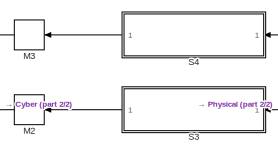
[diagram: root canvas - part 1/2, top center region]
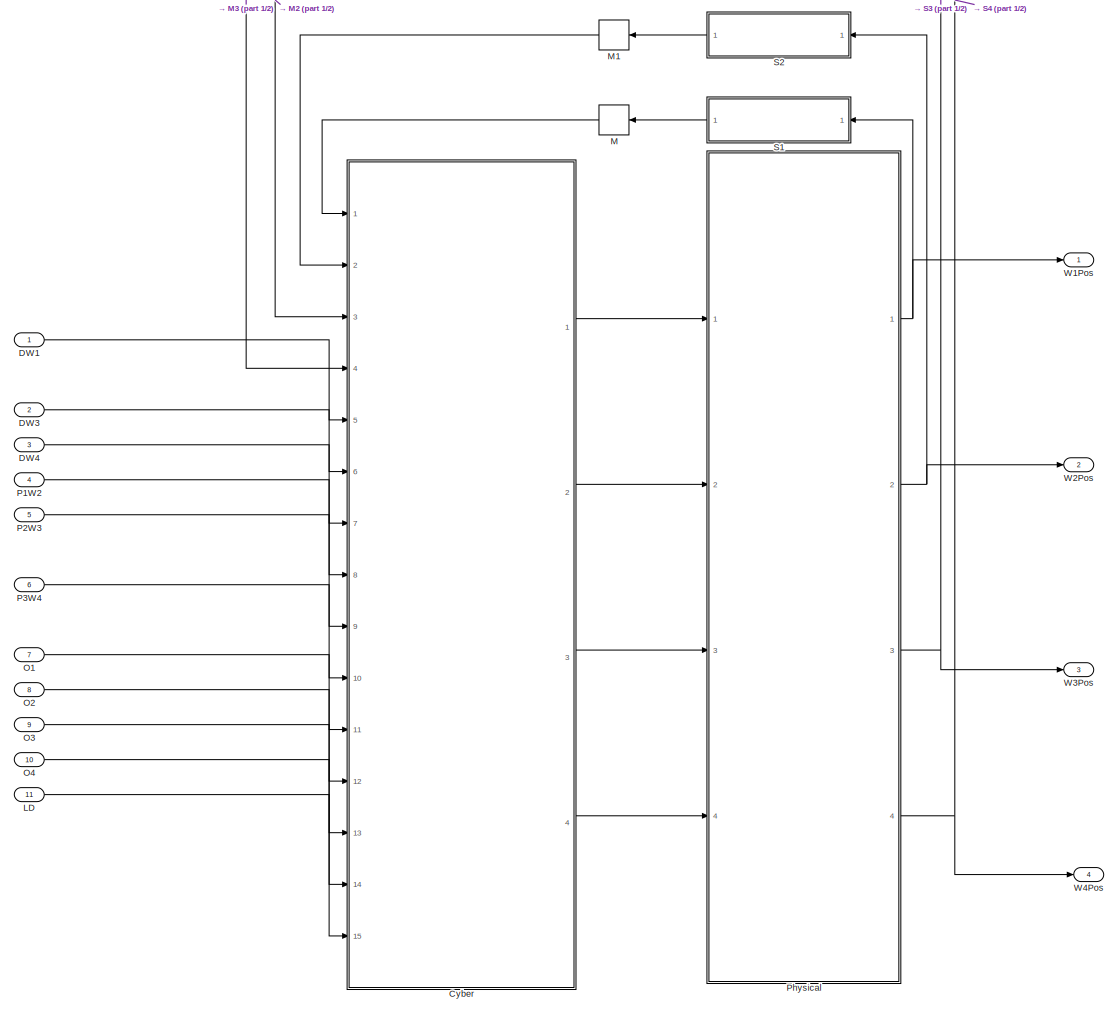
[diagram: root canvas - part 2/2, most of the canvas]
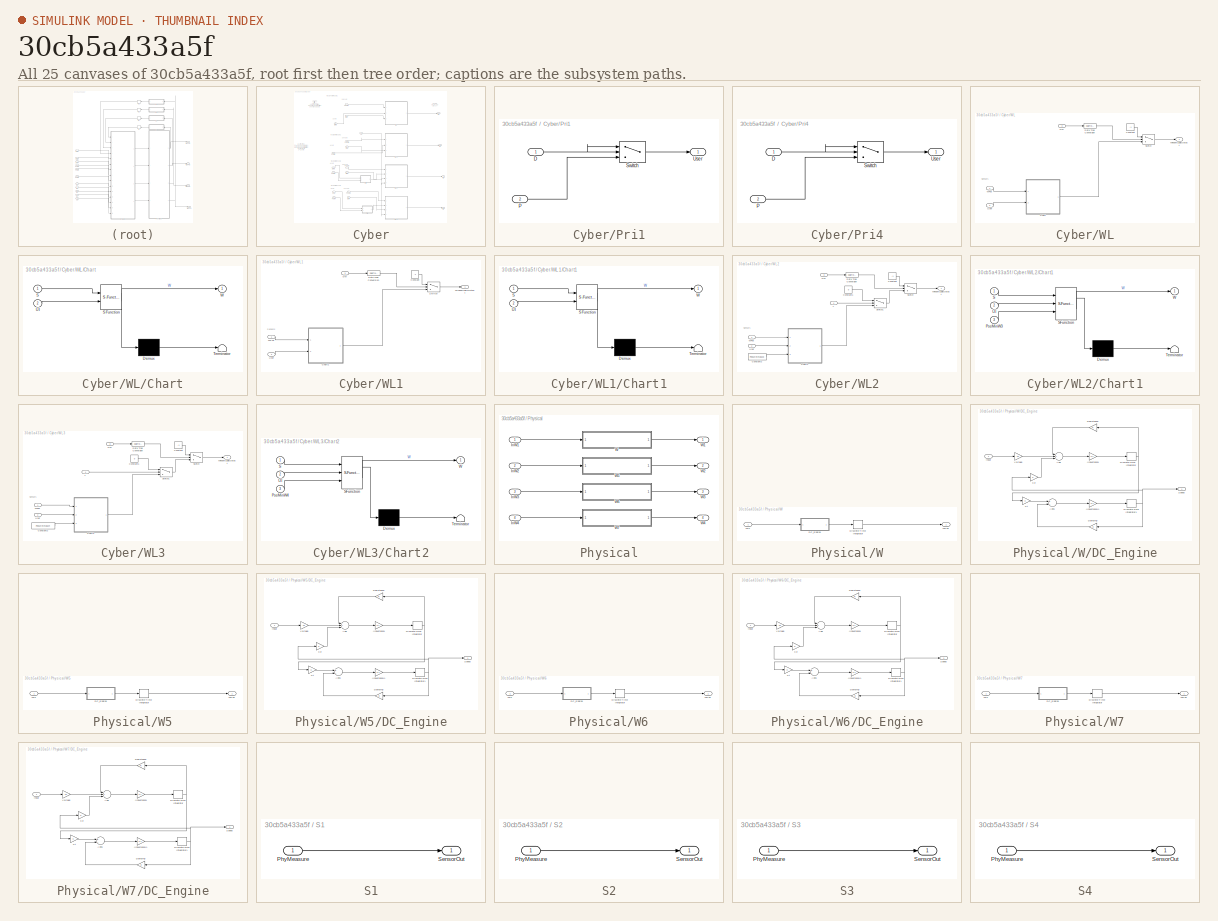
[diagram: thumbnail index - all 25 canvases of the model, root first then tree order]
MODEL slx_30cb5a433a5f
KIND model
CONFIG AbsTol = auto
CONFIG EnableMultiTasking = on
CONFIG FixedStep = auto
CONFIG MaxStep = auto
CONFIG MinStep = auto
CONFIG RelTol = 1e-3
CONFIG SampleTimeConstraint = Unconstrained
CONFIG Solver = ode3
CONFIG SolverName = ode3
CONFIG StartTime = 0.0
CONFIG StopTime = 10.0
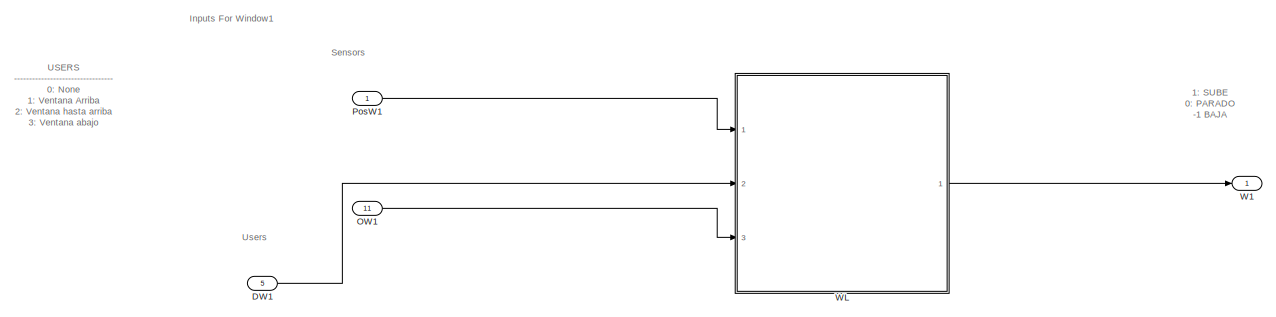
[diagram: Cyber - part 1/3, full width, top band]
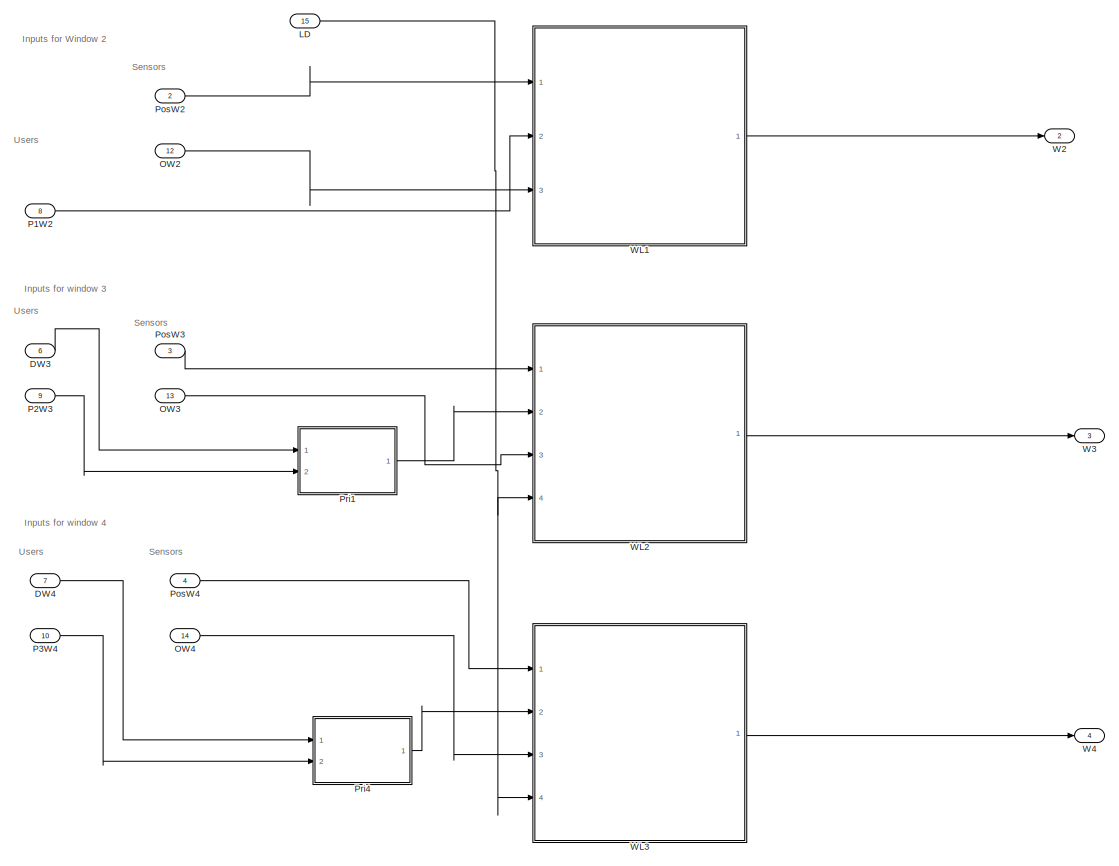
[diagram: Cyber - part 2/3, full width, middle band]
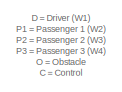
[diagram: Cyber - part 3/3, middle left region]
BLOCK [SubSystem] Cyber
  Ports = [15, 4]
  RequestExecContextInheritance = off
BLOCK [Inport] Cyber/DW1
  IconDisplay = Port number
  Port = 5
BLOCK [Inport] Cyber/DW3
  IconDisplay = Port number
  Port = 6
BLOCK [Inport] Cyber/DW4
  IconDisplay = Port number
  Port = 7
BLOCK [Inport] Cyber/LD
  IconDisplay = Port number
  Port = 15
BLOCK [Inport] Cyber/OW1
  IconDisplay = Port number
  Port = 11
BLOCK [Inport] Cyber/OW2
  IconDisplay = Port number
  Port = 12
BLOCK [Inport] Cyber/OW3
  IconDisplay = Port number
  Port = 13
BLOCK [Inport] Cyber/OW4
  IconDisplay = Port number
  Port = 14
BLOCK [Inport] Cyber/P1W2
  IconDisplay = Port number
  Port = 8
BLOCK [Inport] Cyber/P2W3
  IconDisplay = Port number
  Port = 9
BLOCK [Inport] Cyber/P3W4
  IconDisplay = Port number
  Port = 10
BLOCK [Inport] Cyber/PosW1
  IconDisplay = Port number
BLOCK [Inport] Cyber/PosW2
  IconDisplay = Port number
  Port = 2
BLOCK [Inport] Cyber/PosW3
  IconDisplay = Port number
  Port = 3
BLOCK [Inport] Cyber/PosW4
  IconDisplay = Port number
  Port = 4
BLOCK [SubSystem] Cyber/Pri1
  Ports = [2, 1]
  RequestExecContextInheritance = off
BLOCK [Inport] Cyber/Pri1/D
  IconDisplay = Port number
BLOCK [Inport] Cyber/Pri1/P
  IconDisplay = Port number
  Port = 2
BLOCK [Switch] Cyber/Pri1/Switch
  Criteria = u2 ~= 0
  InputSameDT = off
  SaturateOnIntegerOverflow = off
BLOCK [Outport] Cyber/Pri1/User
  IconDisplay = Port number
BLOCK [SubSystem] Cyber/Pri4
  Ports = [2, 1]
  RequestExecContextInheritance = off
BLOCK [Inport] Cyber/Pri4/D
  IconDisplay = Port number
BLOCK [Inport] Cyber/Pri4/P
  IconDisplay = Port number
  Port = 2
BLOCK [Switch] Cyber/Pri4/Switch
  Criteria = u2 ~= 0
  InputSameDT = off
  SaturateOnIntegerOverflow = off
BLOCK [Outport] Cyber/Pri4/User
  IconDisplay = Port number
BLOCK [Outport] Cyber/W1
  IconDisplay = Port number
BLOCK [Outport] Cyber/W2
  IconDisplay = Port number
  Port = 2
BLOCK [Outport] Cyber/W3
  IconDisplay = Port number
  Port = 3
BLOCK [Outport] Cyber/W4
  IconDisplay = Port number
  Port = 4
BLOCK [SubSystem] Cyber/WL
  Ports = [3, 1]
  RequestExecContextInheritance = off
BLOCK [SubSystem] Cyber/WL/Chart
  ErrorFcn = Stateflow.Translate.translate
  PermitHierarchicalResolution = ExplicitOnly
  Ports = [2, 1]
  RequestExecContextInheritance = off
  SFBlockType = Chart
  TreatAsAtomicUnit = on
BLOCK [Demux] Cyber/WL/Chart/ Demux 
  Outputs = 1
  Ports = [1, 1]
BLOCK [S-Function] Cyber/WL/Chart/ SFunction 
  EnableBusSupport = off
  FunctionName = sf_sfun
  PortCounts = [2 2]
  Ports = [2, 2]
  SFcnIsStateOwnerBlock = off
  SFunctionDeploymentMode = off
  Tag = Stateflow S-Function c00012 1
BLOCK [Terminator] Cyber/WL/Chart/ Terminator 
BLOCK [Inport] Cyber/WL/Chart/S
  IconDisplay = Port number
BLOCK [Inport] Cyber/WL/Chart/UI
  IconDisplay = Port number
  Port = 2
BLOCK [Outport] Cyber/WL/Chart/W
  IconDisplay = Port number
BLOCK [Constant] Cyber/WL/Constant
  Value = -1
BLOCK [DataTypeConversion] Cyber/WL/Data Type Conversion
  RndMeth = Floor
  SaturateOnIntegerOverflow = off
BLOCK [Inport] Cyber/WL/OW
  IconDisplay = Port number
  Port = 3
BLOCK [Switch] Cyber/WL/Switch
  Criteria = u2 ~= 0
  InputSameDT = off
  SaturateOnIntegerOverflow = off
  Threshold = 1
  ZeroCross = off
BLOCK [Inport] Cyber/WL/User
  IconDisplay = Port number
  Port = 2
BLOCK [Inport] Cyber/WL/WPos
  IconDisplay = Port number
BLOCK [Outport] Cyber/WL/WindowLogicOutput
  IconDisplay = Port number
BLOCK [SubSystem] Cyber/WL1
  Ports = [3, 1]
  RequestExecContextInheritance = off
BLOCK [SubSystem] Cyber/WL1/Chart1
  ErrorFcn = Stateflow.Translate.translate
  PermitHierarchicalResolution = ExplicitOnly
  Ports = [2, 1]
  RequestExecContextInheritance = off
  SFBlockType = Chart
  TreatAsAtomicUnit = on
BLOCK [Demux] Cyber/WL1/Chart1/ Demux 
  Outputs = 1
  Ports = [1, 1]
BLOCK [S-Function] Cyber/WL1/Chart1/ SFunction 
  EnableBusSupport = off
  FunctionName = sf_sfun
  PortCounts = [2 2]
  Ports = [2, 2]
  SFcnIsStateOwnerBlock = off
  SFunctionDeploymentMode = off
  Tag = Stateflow S-Function c00012 3
BLOCK [Terminator] Cyber/WL1/Chart1/ Terminator 
BLOCK [Inport] Cyber/WL1/Chart1/S
  IconDisplay = Port number
BLOCK [Inport] Cyber/WL1/Chart1/UI
  IconDisplay = Port number
  Port = 2
BLOCK [Outport] Cyber/WL1/Chart1/W
  IconDisplay = Port number
BLOCK [Constant] Cyber/WL1/Constant
  Value = -1
BLOCK [DataTypeConversion] Cyber/WL1/Data Type Conversion
  RndMeth = Floor
  SaturateOnIntegerOverflow = off
BLOCK [Inport] Cyber/WL1/OW
  IconDisplay = Port number
  Port = 3
BLOCK [Switch] Cyber/WL1/Switch
  Criteria = u2 ~= 0
  InputSameDT = off
  SaturateOnIntegerOverflow = off
  Threshold = 1
  ZeroCross = off
BLOCK [Inport] Cyber/WL1/User
  IconDisplay = Port number
  Port = 2
BLOCK [Inport] Cyber/WL1/WPos
  IconDisplay = Port number
BLOCK [Outport] Cyber/WL1/WindowLogicOutput
  IconDisplay = Port number
BLOCK [SubSystem] Cyber/WL2
  Ports = [4, 1]
  RequestExecContextInheritance = off
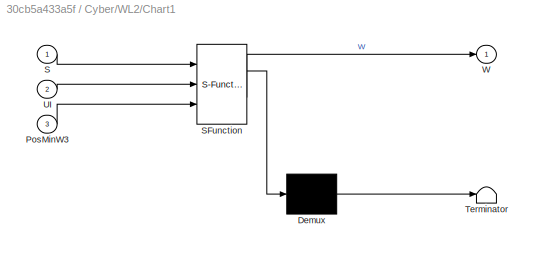
BLOCK [SubSystem] Cyber/WL2/Chart1
  ErrorFcn = Stateflow.Translate.translate
  PermitHierarchicalResolution = ExplicitOnly
  Ports = [3, 1]
  RequestExecContextInheritance = off
  SFBlockType = Chart
  TreatAsAtomicUnit = on
BLOCK [Demux] Cyber/WL2/Chart1/ Demux 
  Outputs = 1
  Ports = [1, 1]
BLOCK [S-Function] Cyber/WL2/Chart1/ SFunction 
  EnableBusSupport = off
  FunctionName = sf_sfun
  PortCounts = [3 2]
  Ports = [3, 2]
  SFcnIsStateOwnerBlock = off
  SFunctionDeploymentMode = off
  Tag = Stateflow S-Function c00012 2
BLOCK [Terminator] Cyber/WL2/Chart1/ Terminator 
BLOCK [Inport] Cyber/WL2/Chart1/PosMinW3
  IconDisplay = Port number
  Port = 3
BLOCK [Inport] Cyber/WL2/Chart1/S
  IconDisplay = Port number
BLOCK [Inport] Cyber/WL2/Chart1/UI
  IconDisplay = Port number
  Port = 2
BLOCK [Outport] Cyber/WL2/Chart1/W
  IconDisplay = Port number
BLOCK [Constant] Cyber/WL2/Constant
  Value = -1
BLOCK [Constant] Cyber/WL2/Constant1
  Value = 0
BLOCK [Constant] Cyber/WL2/Constant2
  Value = PosMinimaW3
BLOCK [DataTypeConversion] Cyber/WL2/Data Type Conversion
  RndMeth = Floor
  SaturateOnIntegerOverflow = off
BLOCK [Inport] Cyber/WL2/L
  IconDisplay = Port number
  Port = 4
BLOCK [Inport] Cyber/WL2/OW
  IconDisplay = Port number
  Port = 3
BLOCK [Switch] Cyber/WL2/Switch
  Criteria = u2 ~= 0
  InputSameDT = off
  SaturateOnIntegerOverflow = off
  Threshold = 1
  ZeroCross = off
BLOCK [Switch] Cyber/WL2/Switch1
  Criteria = u2 ~= 0
  InputSameDT = off
  SaturateOnIntegerOverflow = off
BLOCK [Inport] Cyber/WL2/User
  IconDisplay = Port number
  Port = 2
BLOCK [Inport] Cyber/WL2/WPos
  IconDisplay = Port number
BLOCK [Outport] Cyber/WL2/WindowLogicOutput
  IconDisplay = Port number
BLOCK [SubSystem] Cyber/WL3
  Ports = [4, 1]
  RequestExecContextInheritance = off
BLOCK [SubSystem] Cyber/WL3/Chart2
  ErrorFcn = Stateflow.Translate.translate
  PermitHierarchicalResolution = ExplicitOnly
  Ports = [3, 1]
  RequestExecContextInheritance = off
  SFBlockType = Chart
  TreatAsAtomicUnit = on
BLOCK [Demux] Cyber/WL3/Chart2/ Demux 
  Outputs = 1
  Ports = [1, 1]
BLOCK [S-Function] Cyber/WL3/Chart2/ SFunction 
  EnableBusSupport = off
  FunctionName = sf_sfun
  PortCounts = [3 2]
  Ports = [3, 2]
  SFcnIsStateOwnerBlock = off
  SFunctionDeploymentMode = off
  Tag = Stateflow S-Function c00012 4
BLOCK [Terminator] Cyber/WL3/Chart2/ Terminator 
BLOCK [Inport] Cyber/WL3/Chart2/PosMinW4
  IconDisplay = Port number
  Port = 3
BLOCK [Inport] Cyber/WL3/Chart2/S
  IconDisplay = Port number
BLOCK [Inport] Cyber/WL3/Chart2/UI
  IconDisplay = Port number
  Port = 2
BLOCK [Outport] Cyber/WL3/Chart2/W
  IconDisplay = Port number
BLOCK [Constant] Cyber/WL3/Constant
  Value = -1
BLOCK [Constant] Cyber/WL3/Constant1
  Value = 0
BLOCK [Constant] Cyber/WL3/Constant2
  Value = PosMinimaW4
BLOCK [DataTypeConversion] Cyber/WL3/Data Type Conversion
  RndMeth = Floor
  SaturateOnIntegerOverflow = off
BLOCK [Inport] Cyber/WL3/L
  IconDisplay = Port number
  Port = 4
BLOCK [Inport] Cyber/WL3/OW
  IconDisplay = Port number
  Port = 3
BLOCK [Switch] Cyber/WL3/Switch
  Criteria = u2 ~= 0
  InputSameDT = off
  SaturateOnIntegerOverflow = off
  Threshold = 1
  ZeroCross = off
BLOCK [Switch] Cyber/WL3/Switch1
  Criteria = u2 ~= 0
  InputSameDT = off
  SaturateOnIntegerOverflow = off
BLOCK [Inport] Cyber/WL3/User
  IconDisplay = Port number
  Port = 2
BLOCK [Inport] Cyber/WL3/WPos
  IconDisplay = Port number
BLOCK [Outport] Cyber/WL3/WindowLogicOutput
  IconDisplay = Port number
BLOCK [Inport] DW1
  IconDisplay = Port number
  OutDataTypeStr = int8
  OutMax = 4
  OutMin = 0
BLOCK [Inport] DW3
  IconDisplay = Port number
  OutDataTypeStr = int8
  OutMax = 4
  OutMin = 0
  Port = 2
BLOCK [Inport] DW4
  IconDisplay = Port number
  OutDataTypeStr = int8
  OutMax = 4
  OutMin = 0
  Port = 3
BLOCK [Inport] LD
  IconDisplay = Port number
  OutDataTypeStr = boolean
  Port = 11
BLOCK [Memory] M
BLOCK [Memory] M1
BLOCK [Memory] M2
BLOCK [Memory] M3
BLOCK [Inport] O1
  IconDisplay = Port number
  OutDataTypeStr = boolean
  Port = 7
BLOCK [Inport] O2
  IconDisplay = Port number
  OutDataTypeStr = boolean
  Port = 8
BLOCK [Inport] O3
  IconDisplay = Port number
  OutDataTypeStr = boolean
  Port = 9
BLOCK [Inport] O4
  IconDisplay = Port number
  OutDataTypeStr = boolean
  Port = 10
BLOCK [Inport] P1W2
  IconDisplay = Port number
  OutDataTypeStr = int8
  OutMax = 4
  OutMin = 0
  Port = 4
BLOCK [Inport] P2W3
  IconDisplay = Port number
  OutDataTypeStr = int8
  OutMax = 4
  OutMin = 0
  Port = 5
BLOCK [Inport] P3W4
  IconDisplay = Port number
  OutDataTypeStr = int8
  OutMax = 4
  OutMin = 0
  Port = 6
BLOCK [SubSystem] Physical
  Ports = [4, 4]
  RequestExecContextInheritance = off
BLOCK [Inport] Physical/InW1
  IconDisplay = Port number
BLOCK [Inport] Physical/InW2
  IconDisplay = Port number
  Port = 2
BLOCK [Inport] Physical/InW3
  IconDisplay = Port number
  Port = 3
BLOCK [Inport] Physical/InW4
  IconDisplay = Port number
  Port = 4
BLOCK [SubSystem] Physical/W
  Ports = [1, 1]
  RequestExecContextInheritance = off
BLOCK [SubSystem] Physical/W/DC_Engine
  Ports = [1, 1]
  RequestExecContextInheritance = off
BLOCK [Gain] Physical/W/DC_Engine/(Inductance)
  Gain = 1/L
  OutDataTypeStr = Inherit: Inherit via internal rule
  ParamDataTypeStr = Inherit: Inherit via internal rule
  SaturateOnIntegerOverflow = off
BLOCK [Gain] Physical/W/DC_Engine/(Inductance)1
  Gain = 1/J
  OutDataTypeStr = Inherit: Inherit via internal rule
  ParamDataTypeStr = Inherit: Inherit via internal rule
  SaturateOnIntegerOverflow = off
BLOCK [Sum] Physical/W/DC_Engine/Add
  InputSameDT = off
  Inputs = -+-
  OutDataTypeStr = Inherit: Inherit via internal rule
  Ports = [3, 1]
  SaturateOnIntegerOverflow = off
BLOCK [Sum] Physical/W/DC_Engine/Add1
  InputSameDT = off
  Inputs = +-
  OutDataTypeStr = Inherit: Inherit via internal rule
  Ports = [2, 1]
  SaturateOnIntegerOverflow = off
BLOCK [Gain] Physical/W/DC_Engine/Damping
  Gain = b
  OutDataTypeStr = Inherit: Inherit via internal rule
  ParamDataTypeStr = Inherit: Inherit via internal rule
  SaturateOnIntegerOverflow = off
BLOCK [DiscreteIntegrator] Physical/W/DC_Engine/Discrete-Time Integrator
  ICPrevOutput = DiscIntNeverNeededParam
  ICPrevScaledInput = DiscIntNeverNeededParam
  Ports = [1, 1]
  SampleTime = -1
BLOCK [DiscreteIntegrator] Physical/W/DC_Engine/Discrete-Time Integrator1
  ICPrevOutput = DiscIntNeverNeededParam
  ICPrevScaledInput = DiscIntNeverNeededParam
  Ports = [1, 1]
  SampleTime = -1
BLOCK [Gain] Physical/W/DC_Engine/Ke
  Gain = K
  OutDataTypeStr = Inherit: Inherit via internal rule
  ParamDataTypeStr = Inherit: Inherit via internal rule
  SaturateOnIntegerOverflow = off
BLOCK [Gain] Physical/W/DC_Engine/Kt
  Gain = K
  OutDataTypeStr = Inherit: Inherit via internal rule
  ParamDataTypeStr = Inherit: Inherit via internal rule
  SaturateOnIntegerOverflow = off
BLOCK [Gain] Physical/W/DC_Engine/Resistance
  Gain = R
  OutDataTypeStr = Inherit: Inherit via internal rule
  ParamDataTypeStr = Inherit: Inherit via internal rule
  SaturateOnIntegerOverflow = off
BLOCK [Outport] Physical/W/DC_Engine/Speed
  IconDisplay = Port number
BLOCK [Gain] Physical/W/DC_Engine/Voltage
  Gain = 10
  OutDataTypeStr = Inherit: Inherit via internal rule
  ParamDataTypeStr = Inherit: Inherit via internal rule
  SaturateOnIntegerOverflow = off
BLOCK [Inport] Physical/W/DC_Engine/input
  IconDisplay = Port number
BLOCK [DiscreteIntegrator] Physical/W/Discrete-Time Integrator
  ICPrevOutput = DiscIntNeverNeededParam
  ICPrevScaledInput = DiscIntNeverNeededParam
  InitialCondition = 5
  LimitOutput = on
  LowerSaturationLimit = 0
  Ports = [1, 1]
  SampleTime = -1
  UpperSaturationLimit = 5
BLOCK [Inport] Physical/W/WIn
  IconDisplay = Port number
BLOCK [Outport] Physical/W/WPos
  IconDisplay = Port number
BLOCK [Outport] Physical/W1
  IconDisplay = Port number
BLOCK [Outport] Physical/W2
  IconDisplay = Port number
  Port = 2
BLOCK [Outport] Physical/W3
  IconDisplay = Port number
  Port = 3
BLOCK [Outport] Physical/W4
  IconDisplay = Port number
  Port = 4
BLOCK [SubSystem] Physical/W5
  Ports = [1, 1]
  RequestExecContextInheritance = off
BLOCK [SubSystem] Physical/W5/DC_Engine
  Ports = [1, 1]
  RequestExecContextInheritance = off
BLOCK [Gain] Physical/W5/DC_Engine/(Inductance)
  Gain = 1/L
  OutDataTypeStr = Inherit: Inherit via internal rule
  ParamDataTypeStr = Inherit: Inherit via internal rule
  SaturateOnIntegerOverflow = off
BLOCK [Gain] Physical/W5/DC_Engine/(Inductance)1
  Gain = 1/J
  OutDataTypeStr = Inherit: Inherit via internal rule
  ParamDataTypeStr = Inherit: Inherit via internal rule
  SaturateOnIntegerOverflow = off
BLOCK [Sum] Physical/W5/DC_Engine/Add
  InputSameDT = off
  Inputs = -+-
  OutDataTypeStr = Inherit: Inherit via internal rule
  Ports = [3, 1]
  SaturateOnIntegerOverflow = off
BLOCK [Sum] Physical/W5/DC_Engine/Add1
  InputSameDT = off
  Inputs = +-
  OutDataTypeStr = Inherit: Inherit via internal rule
  Ports = [2, 1]
  SaturateOnIntegerOverflow = off
BLOCK [Gain] Physical/W5/DC_Engine/Damping
  Gain = b
  OutDataTypeStr = Inherit: Inherit via internal rule
  ParamDataTypeStr = Inherit: Inherit via internal rule
  SaturateOnIntegerOverflow = off
BLOCK [DiscreteIntegrator] Physical/W5/DC_Engine/Discrete-Time Integrator
  ICPrevOutput = DiscIntNeverNeededParam
  ICPrevScaledInput = DiscIntNeverNeededParam
  Ports = [1, 1]
  SampleTime = -1
BLOCK [DiscreteIntegrator] Physical/W5/DC_Engine/Discrete-Time Integrator1
  ICPrevOutput = DiscIntNeverNeededParam
  ICPrevScaledInput = DiscIntNeverNeededParam
  Ports = [1, 1]
  SampleTime = -1
BLOCK [Gain] Physical/W5/DC_Engine/Ke
  Gain = K
  OutDataTypeStr = Inherit: Inherit via internal rule
  ParamDataTypeStr = Inherit: Inherit via internal rule
  SaturateOnIntegerOverflow = off
BLOCK [Gain] Physical/W5/DC_Engine/Kt
  Gain = K
  OutDataTypeStr = Inherit: Inherit via internal rule
  ParamDataTypeStr = Inherit: Inherit via internal rule
  SaturateOnIntegerOverflow = off
BLOCK [Gain] Physical/W5/DC_Engine/Resistance
  Gain = R
  OutDataTypeStr = Inherit: Inherit via internal rule
  ParamDataTypeStr = Inherit: Inherit via internal rule
  SaturateOnIntegerOverflow = off
BLOCK [Outport] Physical/W5/DC_Engine/Speed
  IconDisplay = Port number
BLOCK [Gain] Physical/W5/DC_Engine/Voltage
  Gain = 10
  OutDataTypeStr = Inherit: Inherit via internal rule
  ParamDataTypeStr = Inherit: Inherit via internal rule
  SaturateOnIntegerOverflow = off
BLOCK [Inport] Physical/W5/DC_Engine/input
  IconDisplay = Port number
BLOCK [DiscreteIntegrator] Physical/W5/Discrete-Time Integrator
  ICPrevOutput = DiscIntNeverNeededParam
  ICPrevScaledInput = DiscIntNeverNeededParam
  InitialCondition = 5
  LimitOutput = on
  LowerSaturationLimit = 0
  Ports = [1, 1]
  SampleTime = -1
  UpperSaturationLimit = 5
BLOCK [Inport] Physical/W5/WIn
  IconDisplay = Port number
BLOCK [Outport] Physical/W5/WPos
  IconDisplay = Port number
BLOCK [SubSystem] Physical/W6
  Ports = [1, 1]
  RequestExecContextInheritance = off
BLOCK [SubSystem] Physical/W6/DC_Engine
  Ports = [1, 1]
  RequestExecContextInheritance = off
BLOCK [Gain] Physical/W6/DC_Engine/(Inductance)
  Gain = 1/L
  OutDataTypeStr = Inherit: Inherit via internal rule
  ParamDataTypeStr = Inherit: Inherit via internal rule
  SaturateOnIntegerOverflow = off
BLOCK [Gain] Physical/W6/DC_Engine/(Inductance)1
  Gain = 1/J
  OutDataTypeStr = Inherit: Inherit via internal rule
  ParamDataTypeStr = Inherit: Inherit via internal rule
  SaturateOnIntegerOverflow = off
BLOCK [Sum] Physical/W6/DC_Engine/Add
  InputSameDT = off
  Inputs = -+-
  OutDataTypeStr = Inherit: Inherit via internal rule
  Ports = [3, 1]
  SaturateOnIntegerOverflow = off
BLOCK [Sum] Physical/W6/DC_Engine/Add1
  InputSameDT = off
  Inputs = +-
  OutDataTypeStr = Inherit: Inherit via internal rule
  Ports = [2, 1]
  SaturateOnIntegerOverflow = off
BLOCK [Gain] Physical/W6/DC_Engine/Damping
  Gain = b
  OutDataTypeStr = Inherit: Inherit via internal rule
  ParamDataTypeStr = Inherit: Inherit via internal rule
  SaturateOnIntegerOverflow = off
BLOCK [DiscreteIntegrator] Physical/W6/DC_Engine/Discrete-Time Integrator
  ICPrevOutput = DiscIntNeverNeededParam
  ICPrevScaledInput = DiscIntNeverNeededParam
  Ports = [1, 1]
  SampleTime = -1
BLOCK [DiscreteIntegrator] Physical/W6/DC_Engine/Discrete-Time Integrator1
  ICPrevOutput = DiscIntNeverNeededParam
  ICPrevScaledInput = DiscIntNeverNeededParam
  Ports = [1, 1]
  SampleTime = -1
BLOCK [Gain] Physical/W6/DC_Engine/Ke
  Gain = K
  OutDataTypeStr = Inherit: Inherit via internal rule
  ParamDataTypeStr = Inherit: Inherit via internal rule
  SaturateOnIntegerOverflow = off
BLOCK [Gain] Physical/W6/DC_Engine/Kt
  Gain = K
  OutDataTypeStr = Inherit: Inherit via internal rule
  ParamDataTypeStr = Inherit: Inherit via internal rule
  SaturateOnIntegerOverflow = off
BLOCK [Gain] Physical/W6/DC_Engine/Resistance
  Gain = R
  OutDataTypeStr = Inherit: Inherit via internal rule
  ParamDataTypeStr = Inherit: Inherit via internal rule
  SaturateOnIntegerOverflow = off
BLOCK [Outport] Physical/W6/DC_Engine/Speed
  IconDisplay = Port number
BLOCK [Gain] Physical/W6/DC_Engine/Voltage
  Gain = 10
  OutDataTypeStr = Inherit: Inherit via internal rule
  ParamDataTypeStr = Inherit: Inherit via internal rule
  SaturateOnIntegerOverflow = off
BLOCK [Inport] Physical/W6/DC_Engine/input
  IconDisplay = Port number
BLOCK [DiscreteIntegrator] Physical/W6/Discrete-Time Integrator
  ICPrevOutput = DiscIntNeverNeededParam
  ICPrevScaledInput = DiscIntNeverNeededParam
  InitialCondition = 5
  LimitOutput = on
  LowerSaturationLimit = PosMinimaW3
  Ports = [1, 1]
  SampleTime = -1
  UpperSaturationLimit = 5
BLOCK [Inport] Physical/W6/WIn
  IconDisplay = Port number
BLOCK [Outport] Physical/W6/WPos
  IconDisplay = Port number
BLOCK [SubSystem] Physical/W7
  Ports = [1, 1]
  RequestExecContextInheritance = off
BLOCK [SubSystem] Physical/W7/DC_Engine
  Ports = [1, 1]
  RequestExecContextInheritance = off
BLOCK [Gain] Physical/W7/DC_Engine/(Inductance)
  Gain = 1/L
  OutDataTypeStr = Inherit: Inherit via internal rule
  ParamDataTypeStr = Inherit: Inherit via internal rule
  SaturateOnIntegerOverflow = off
BLOCK [Gain] Physical/W7/DC_Engine/(Inductance)1
  Gain = 1/J
  OutDataTypeStr = Inherit: Inherit via internal rule
  ParamDataTypeStr = Inherit: Inherit via internal rule
  SaturateOnIntegerOverflow = off
BLOCK [Sum] Physical/W7/DC_Engine/Add
  InputSameDT = off
  Inputs = -+-
  OutDataTypeStr = Inherit: Inherit via internal rule
  Ports = [3, 1]
  SaturateOnIntegerOverflow = off
BLOCK [Sum] Physical/W7/DC_Engine/Add1
  InputSameDT = off
  Inputs = +-
  OutDataTypeStr = Inherit: Inherit via internal rule
  Ports = [2, 1]
  SaturateOnIntegerOverflow = off
BLOCK [Gain] Physical/W7/DC_Engine/Damping
  Gain = b
  OutDataTypeStr = Inherit: Inherit via internal rule
  ParamDataTypeStr = Inherit: Inherit via internal rule
  SaturateOnIntegerOverflow = off
BLOCK [DiscreteIntegrator] Physical/W7/DC_Engine/Discrete-Time Integrator
  ICPrevOutput = DiscIntNeverNeededParam
  ICPrevScaledInput = DiscIntNeverNeededParam
  Ports = [1, 1]
  SampleTime = -1
BLOCK [DiscreteIntegrator] Physical/W7/DC_Engine/Discrete-Time Integrator1
  ICPrevOutput = DiscIntNeverNeededParam
  ICPrevScaledInput = DiscIntNeverNeededParam
  Ports = [1, 1]
  SampleTime = -1
BLOCK [Gain] Physical/W7/DC_Engine/Ke
  Gain = K
  OutDataTypeStr = Inherit: Inherit via internal rule
  ParamDataTypeStr = Inherit: Inherit via internal rule
  SaturateOnIntegerOverflow = off
BLOCK [Gain] Physical/W7/DC_Engine/Kt
  Gain = K
  OutDataTypeStr = Inherit: Inherit via internal rule
  ParamDataTypeStr = Inherit: Inherit via internal rule
  SaturateOnIntegerOverflow = off
BLOCK [Gain] Physical/W7/DC_Engine/Resistance
  Gain = R
  OutDataTypeStr = Inherit: Inherit via internal rule
  ParamDataTypeStr = Inherit: Inherit via internal rule
  SaturateOnIntegerOverflow = off
BLOCK [Outport] Physical/W7/DC_Engine/Speed
  IconDisplay = Port number
BLOCK [Gain] Physical/W7/DC_Engine/Voltage
  Gain = 10
  OutDataTypeStr = Inherit: Inherit via internal rule
  ParamDataTypeStr = Inherit: Inherit via internal rule
  SaturateOnIntegerOverflow = off
BLOCK [Inport] Physical/W7/DC_Engine/input
  IconDisplay = Port number
BLOCK [DiscreteIntegrator] Physical/W7/Discrete-Time Integrator
  ICPrevOutput = DiscIntNeverNeededParam
  ICPrevScaledInput = DiscIntNeverNeededParam
  InitialCondition = 5
  LimitOutput = on
  LowerSaturationLimit = PosMinimaW4
  Ports = [1, 1]
  SampleTime = -1
  UpperSaturationLimit = 5
BLOCK [Inport] Physical/W7/WIn
  IconDisplay = Port number
BLOCK [Outport] Physical/W7/WPos
  IconDisplay = Port number
BLOCK [SubSystem] S1
  Ports = [1, 1]
  RequestExecContextInheritance = off
BLOCK [Inport] S1/PhyMeasure
  IconDisplay = Port number
BLOCK [Outport] S1/SensorOut
  IconDisplay = Port number
BLOCK [SubSystem] S2
  Ports = [1, 1]
  RequestExecContextInheritance = off
BLOCK [Inport] S2/PhyMeasure
  IconDisplay = Port number
BLOCK [Outport] S2/SensorOut
  IconDisplay = Port number
BLOCK [SubSystem] S3
  Ports = [1, 1]
  RequestExecContextInheritance = off
BLOCK [Inport] S3/PhyMeasure
  IconDisplay = Port number
BLOCK [Outport] S3/SensorOut
  IconDisplay = Port number
BLOCK [SubSystem] S4
  Ports = [1, 1]
  RequestExecContextInheritance = off
BLOCK [Inport] S4/PhyMeasure
  IconDisplay = Port number
BLOCK [Outport] S4/SensorOut
  IconDisplay = Port number
BLOCK [Outport] W1Pos
  IconDisplay = Port number
BLOCK [Outport] W2Pos
  IconDisplay = Port number
  Port = 2
BLOCK [Outport] W3Pos
  IconDisplay = Port number
  Port = 3
BLOCK [Outport] W4Pos
  IconDisplay = Port number
  Port = 4
ANNOTATION Cyber: 1: SUBE 0: PARADO -1 BAJA
ANNOTATION Cyber: Inputs For Window1
ANNOTATION Cyber: Inputs for Window 2
ANNOTATION Cyber: Inputs for window 3
ANNOTATION Cyber: Inputs for window 4
ANNOTATION Cyber: Sensors
ANNOTATION Cyber: USERS --------------------------------- 0: None 1: Ventana Arriba 2: Ventana hasta arriba 3: Ventana abajo 4: Ventana hasta abajo
ANNOTATION Cyber: Users
ANNOTATION Cyber: D = Driver (W1) P1 = Passenger 1 (W2) P2 = Passenger 2 (W3) P3 = Passenger 3 (W4) O = Obstacle C = Control Pri = Prioritizer LD = LockDriver PosW = PositionWindow WL = WindowLogic OW = ObstacleWindow CWXC = ControlWindowXCentralized S = Sensor L = Lock WPos = WindowPosition M = Memory InW = InputWindow WIn = WindowInput
ANNOTATION Cyber/WL: Sensors
ANNOTATION Cyber/WL1: Sensors
ANNOTATION Cyber/WL2: Sensors
ANNOTATION Cyber/WL3: Sensors
LINE Cyber/DW1:1 -> Cyber/WL:2
LINE Cyber/DW3:1 -> Cyber/Pri1:1
LINE Cyber/DW4:1 -> Cyber/Pri4:1
NET Cyber/LD:1 -> Cyber/WL2:4, Cyber/WL3:4
LINE Cyber/OW1:1 -> Cyber/WL:3
LINE Cyber/OW2:1 -> Cyber/WL1:3
LINE Cyber/OW3:1 -> Cyber/WL2:3
LINE Cyber/OW4:1 -> Cyber/WL3:3
LINE Cyber/P1W2:1 -> Cyber/WL1:2
LINE Cyber/P2W3:1 -> Cyber/Pri1:2
LINE Cyber/P3W4:1 -> Cyber/Pri4:2
LINE Cyber/PosW1:1 -> Cyber/WL:1
LINE Cyber/PosW2:1 -> Cyber/WL1:1
LINE Cyber/PosW3:1 -> Cyber/WL2:1
LINE Cyber/PosW4:1 -> Cyber/WL3:1
NET Cyber/Pri1/D:1 -> Cyber/Pri1/Switch:1, Cyber/Pri1/Switch:2
LINE Cyber/Pri1/P:1 -> Cyber/Pri1/Switch:3
LINE Cyber/Pri1/Switch:1 -> Cyber/Pri1/User:1
LINE Cyber/Pri1:1 -> Cyber/WL2:2
NET Cyber/Pri4/D:1 -> Cyber/Pri4/Switch:1, Cyber/Pri4/Switch:2
LINE Cyber/Pri4/P:1 -> Cyber/Pri4/Switch:3
LINE Cyber/Pri4/Switch:1 -> Cyber/Pri4/User:1
LINE Cyber/Pri4:1 -> Cyber/WL3:2
LINE Cyber/WL/Chart:1 -> Cyber/WL/Switch:3
LINE Cyber/WL/Constant:1 -> Cyber/WL/Switch:1
LINE Cyber/WL/Data Type Conversion:1 -> Cyber/WL/Switch:2
LINE Cyber/WL/OW:1 -> Cyber/WL/Data Type Conversion:1
LINE Cyber/WL/Switch:1 -> Cyber/WL/WindowLogicOutput:1
LINE Cyber/WL/User:1 -> Cyber/WL/Chart:2
LINE Cyber/WL/WPos:1 -> Cyber/WL/Chart:1
LINE Cyber/WL1/Chart1:1 -> Cyber/WL1/Switch:3
LINE Cyber/WL1/Constant:1 -> Cyber/WL1/Switch:1
LINE Cyber/WL1/Data Type Conversion:1 -> Cyber/WL1/Switch:2
LINE Cyber/WL1/OW:1 -> Cyber/WL1/Data Type Conversion:1
LINE Cyber/WL1/Switch:1 -> Cyber/WL1/WindowLogicOutput:1
LINE Cyber/WL1/User:1 -> Cyber/WL1/Chart1:2
LINE Cyber/WL1/WPos:1 -> Cyber/WL1/Chart1:1
LINE Cyber/WL1:1 -> Cyber/W2:1
LINE Cyber/WL2/Chart1:1 -> Cyber/WL2/Switch1:3
LINE Cyber/WL2/Constant1:1 -> Cyber/WL2/Switch1:1
LINE Cyber/WL2/Constant2:1 -> Cyber/WL2/Chart1:3
LINE Cyber/WL2/Constant:1 -> Cyber/WL2/Switch:1
LINE Cyber/WL2/Data Type Conversion:1 -> Cyber/WL2/Switch:2
LINE Cyber/WL2/L:1 -> Cyber/WL2/Switch1:2
LINE Cyber/WL2/OW:1 -> Cyber/WL2/Data Type Conversion:1
LINE Cyber/WL2/Switch1:1 -> Cyber/WL2/Switch:3
LINE Cyber/WL2/Switch:1 -> Cyber/WL2/WindowLogicOutput:1
LINE Cyber/WL2/User:1 -> Cyber/WL2/Chart1:2
LINE Cyber/WL2/WPos:1 -> Cyber/WL2/Chart1:1
LINE Cyber/WL2:1 -> Cyber/W3:1
LINE Cyber/WL3/Chart2:1 -> Cyber/WL3/Switch1:3
LINE Cyber/WL3/Constant1:1 -> Cyber/WL3/Switch1:1
LINE Cyber/WL3/Constant2:1 -> Cyber/WL3/Chart2:3
LINE Cyber/WL3/Constant:1 -> Cyber/WL3/Switch:1
LINE Cyber/WL3/Data Type Conversion:1 -> Cyber/WL3/Switch:2
LINE Cyber/WL3/L:1 -> Cyber/WL3/Switch1:2
LINE Cyber/WL3/OW:1 -> Cyber/WL3/Data Type Conversion:1
LINE Cyber/WL3/Switch1:1 -> Cyber/WL3/Switch:3
LINE Cyber/WL3/Switch:1 -> Cyber/WL3/WindowLogicOutput:1
LINE Cyber/WL3/User:1 -> Cyber/WL3/Chart2:2
LINE Cyber/WL3/WPos:1 -> Cyber/WL3/Chart2:1
LINE Cyber/WL3:1 -> Cyber/W4:1
LINE Cyber/WL:1 -> Cyber/W1:1
LINE Cyber:1 -> Physical:1
LINE Cyber:2 -> Physical:2
LINE Cyber:3 -> Physical:3
LINE Cyber:4 -> Physical:4
LINE DW1:1 -> Cyber:5
LINE DW3:1 -> Cyber:6
LINE DW4:1 -> Cyber:7
LINE LD:1 -> Cyber:15
LINE M1:1 -> Cyber:2
LINE M2:1 -> Cyber:3
LINE M3:1 -> Cyber:4
LINE M:1 -> Cyber:1
LINE O1:1 -> Cyber:11
LINE O2:1 -> Cyber:12
LINE O3:1 -> Cyber:13
LINE O4:1 -> Cyber:14
LINE P1W2:1 -> Cyber:8
LINE P2W3:1 -> Cyber:9
LINE P3W4:1 -> Cyber:10
LINE Physical/InW1:1 -> Physical/W:1
LINE Physical/InW2:1 -> Physical/W5:1
LINE Physical/InW3:1 -> Physical/W6:1
LINE Physical/InW4:1 -> Physical/W7:1
LINE Physical/W/DC_Engine/(Inductance)1:1 -> Physical/W/DC_Engine/Discrete-Time Integrator1:1
LINE Physical/W/DC_Engine/(Inductance):1 -> Physical/W/DC_Engine/Discrete-Time Integrator:1
LINE Physical/W/DC_Engine/Add1:1 -> Physical/W/DC_Engine/(Inductance)1:1
LINE Physical/W/DC_Engine/Add:1 -> Physical/W/DC_Engine/(Inductance):1
LINE Physical/W/DC_Engine/Damping:1 -> Physical/W/DC_Engine/Add1:2
NET Physical/W/DC_Engine/Discrete-Time Integrator1:1 -> Physical/W/DC_Engine/Damping:1, Physical/W/DC_Engine/Ke:1, Physical/W/DC_Engine/Speed:1
NET Physical/W/DC_Engine/Discrete-Time Integrator:1 -> Physical/W/DC_Engine/Kt:1, Physical/W/DC_Engine/Resistance:1
LINE Physical/W/DC_Engine/Ke:1 -> Physical/W/DC_Engine/Add:3
LINE Physical/W/DC_Engine/Kt:1 -> Physical/W/DC_Engine/Add1:1
LINE Physical/W/DC_Engine/Resistance:1 -> Physical/W/DC_Engine/Add:1
LINE Physical/W/DC_Engine/Voltage:1 -> Physical/W/DC_Engine/Add:2
LINE Physical/W/DC_Engine/input:1 -> Physical/W/DC_Engine/Voltage:1
LINE Physical/W/DC_Engine:1 -> Physical/W/Discrete-Time Integrator:1
LINE Physical/W/Discrete-Time Integrator:1 -> Physical/W/WPos:1
LINE Physical/W/WIn:1 -> Physical/W/DC_Engine:1
LINE Physical/W5/DC_Engine/(Inductance)1:1 -> Physical/W5/DC_Engine/Discrete-Time Integrator1:1
LINE Physical/W5/DC_Engine/(Inductance):1 -> Physical/W5/DC_Engine/Discrete-Time Integrator:1
LINE Physical/W5/DC_Engine/Add1:1 -> Physical/W5/DC_Engine/(Inductance)1:1
LINE Physical/W5/DC_Engine/Add:1 -> Physical/W5/DC_Engine/(Inductance):1
LINE Physical/W5/DC_Engine/Damping:1 -> Physical/W5/DC_Engine/Add1:2
NET Physical/W5/DC_Engine/Discrete-Time Integrator1:1 -> Physical/W5/DC_Engine/Damping:1, Physical/W5/DC_Engine/Ke:1, Physical/W5/DC_Engine/Speed:1
NET Physical/W5/DC_Engine/Discrete-Time Integrator:1 -> Physical/W5/DC_Engine/Kt:1, Physical/W5/DC_Engine/Resistance:1
LINE Physical/W5/DC_Engine/Ke:1 -> Physical/W5/DC_Engine/Add:3
LINE Physical/W5/DC_Engine/Kt:1 -> Physical/W5/DC_Engine/Add1:1
LINE Physical/W5/DC_Engine/Resistance:1 -> Physical/W5/DC_Engine/Add:1
LINE Physical/W5/DC_Engine/Voltage:1 -> Physical/W5/DC_Engine/Add:2
LINE Physical/W5/DC_Engine/input:1 -> Physical/W5/DC_Engine/Voltage:1
LINE Physical/W5/DC_Engine:1 -> Physical/W5/Discrete-Time Integrator:1
LINE Physical/W5/Discrete-Time Integrator:1 -> Physical/W5/WPos:1
LINE Physical/W5/WIn:1 -> Physical/W5/DC_Engine:1
LINE Physical/W5:1 -> Physical/W2:1
LINE Physical/W6/DC_Engine/(Inductance)1:1 -> Physical/W6/DC_Engine/Discrete-Time Integrator1:1
LINE Physical/W6/DC_Engine/(Inductance):1 -> Physical/W6/DC_Engine/Discrete-Time Integrator:1
LINE Physical/W6/DC_Engine/Add1:1 -> Physical/W6/DC_Engine/(Inductance)1:1
LINE Physical/W6/DC_Engine/Add:1 -> Physical/W6/DC_Engine/(Inductance):1
LINE Physical/W6/DC_Engine/Damping:1 -> Physical/W6/DC_Engine/Add1:2
NET Physical/W6/DC_Engine/Discrete-Time Integrator1:1 -> Physical/W6/DC_Engine/Damping:1, Physical/W6/DC_Engine/Ke:1, Physical/W6/DC_Engine/Speed:1
NET Physical/W6/DC_Engine/Discrete-Time Integrator:1 -> Physical/W6/DC_Engine/Kt:1, Physical/W6/DC_Engine/Resistance:1
LINE Physical/W6/DC_Engine/Ke:1 -> Physical/W6/DC_Engine/Add:3
LINE Physical/W6/DC_Engine/Kt:1 -> Physical/W6/DC_Engine/Add1:1
LINE Physical/W6/DC_Engine/Resistance:1 -> Physical/W6/DC_Engine/Add:1
LINE Physical/W6/DC_Engine/Voltage:1 -> Physical/W6/DC_Engine/Add:2
LINE Physical/W6/DC_Engine/input:1 -> Physical/W6/DC_Engine/Voltage:1
LINE Physical/W6/DC_Engine:1 -> Physical/W6/Discrete-Time Integrator:1
LINE Physical/W6/Discrete-Time Integrator:1 -> Physical/W6/WPos:1
LINE Physical/W6/WIn:1 -> Physical/W6/DC_Engine:1
LINE Physical/W6:1 -> Physical/W3:1
LINE Physical/W7/DC_Engine/(Inductance)1:1 -> Physical/W7/DC_Engine/Discrete-Time Integrator1:1
LINE Physical/W7/DC_Engine/(Inductance):1 -> Physical/W7/DC_Engine/Discrete-Time Integrator:1
LINE Physical/W7/DC_Engine/Add1:1 -> Physical/W7/DC_Engine/(Inductance)1:1
LINE Physical/W7/DC_Engine/Add:1 -> Physical/W7/DC_Engine/(Inductance):1
LINE Physical/W7/DC_Engine/Damping:1 -> Physical/W7/DC_Engine/Add1:2
NET Physical/W7/DC_Engine/Discrete-Time Integrator1:1 -> Physical/W7/DC_Engine/Damping:1, Physical/W7/DC_Engine/Ke:1, Physical/W7/DC_Engine/Speed:1
NET Physical/W7/DC_Engine/Discrete-Time Integrator:1 -> Physical/W7/DC_Engine/Kt:1, Physical/W7/DC_Engine/Resistance:1
LINE Physical/W7/DC_Engine/Ke:1 -> Physical/W7/DC_Engine/Add:3
LINE Physical/W7/DC_Engine/Kt:1 -> Physical/W7/DC_Engine/Add1:1
LINE Physical/W7/DC_Engine/Resistance:1 -> Physical/W7/DC_Engine/Add:1
LINE Physical/W7/DC_Engine/Voltage:1 -> Physical/W7/DC_Engine/Add:2
LINE Physical/W7/DC_Engine/input:1 -> Physical/W7/DC_Engine/Voltage:1
LINE Physical/W7/DC_Engine:1 -> Physical/W7/Discrete-Time Integrator:1
LINE Physical/W7/Discrete-Time Integrator:1 -> Physical/W7/WPos:1
LINE Physical/W7/WIn:1 -> Physical/W7/DC_Engine:1
LINE Physical/W7:1 -> Physical/W4:1
LINE Physical/W:1 -> Physical/W1:1
NET Physical:1 -> S1:1, W1Pos:1
NET Physical:2 -> S2:1, W2Pos:1
NET Physical:3 -> S3:1, W3Pos:1
NET Physical:4 -> S4:1, W4Pos:1
LINE S1/PhyMeasure:1 -> S1/SensorOut:1
LINE S1:1 -> M:1
LINE S2/PhyMeasure:1 -> S2/SensorOut:1
LINE S2:1 -> M1:1
LINE S3/PhyMeasure:1 -> S3/SensorOut:1
LINE S3:1 -> M2:1
LINE S4/PhyMeasure:1 -> S4/SensorOut:1
LINE S4:1 -> M3:1
note: NET lines group one-source signal fan-out (src -> all destinations, sorted); 1:1 wires keep LINE
CHART Cyber/WL/Chart states=5 transitions=21
  STATE_LABEL 'Bajand_hasta_abajo\nentry: W = -1;'
  STATE_LABEL 'Bajando\nentry: W = -1;'
  STATE_LABEL 'Idle\nentry:W = 0; \n'
  STATE_LABEL 'Subiendo_hasta_arriba\nentry: W = 1;'
  STATE_LABEL 'Subiendo\nentry: W = 1;'
CHART Cyber/WL2/Chart1 states=5 transitions=21
  STATE_LABEL 'Bajand_hasta_abajo\nentry: W = -1;'
  STATE_LABEL 'Bajando\nentry: W = -1;'
  STATE_LABEL 'Idle\nentry:W = 0; \n'
  STATE_LABEL 'Subiendo_hasta_arriba\nentry: W = 1;'
  STATE_LABEL 'Subiendo\nentry: W = 1;'
CHART Cyber/WL1/Chart1 states=5 transitions=21
  STATE_LABEL 'Bajand_hasta_abajo\nentry: W = -1;'
  STATE_LABEL 'Bajando\nentry: W = -1;'
  STATE_LABEL 'Idle\nentry:W = 0; \n'
  STATE_LABEL 'Subiendo_hasta_arriba\nentry: W = 1;'
  STATE_LABEL 'Subiendo\nentry: W = 1;'
CHART Cyber/WL3/Chart2 states=5 transitions=21
  STATE_LABEL 'Bajand_hasta_abajo\nentry: W = -1;'
  STATE_LABEL 'Bajando\nentry: W = -1;'
  STATE_LABEL 'Idle\nentry:W = 0; \n'
  STATE_LABEL 'Subiendo_hasta_arriba\nentry: W = 1;'
  STATE_LABEL 'Subiendo\nentry: W = 1;'
